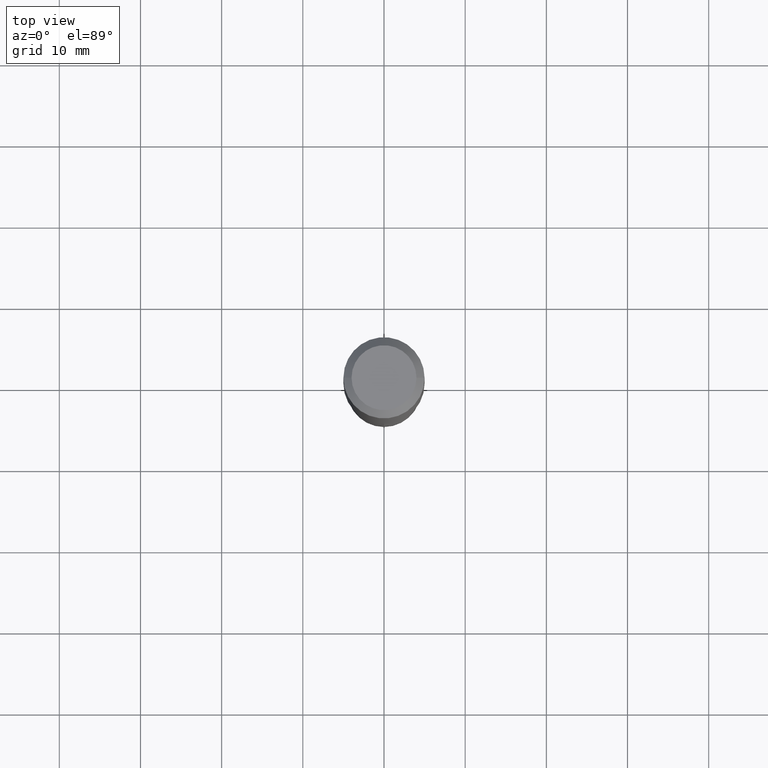
[diagram: clean part render]
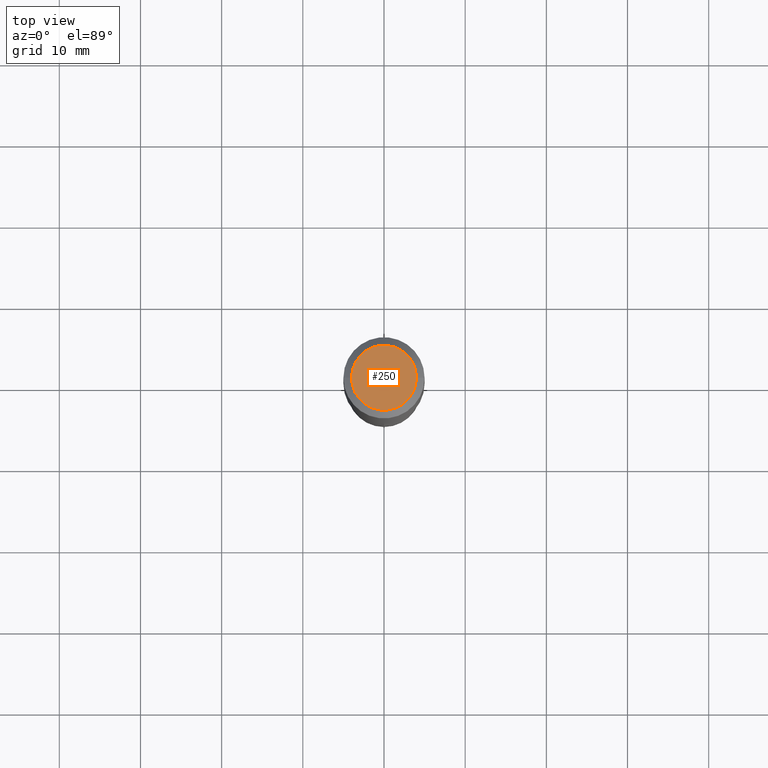
[diagram: same view with one face highlighted and labeled with its STEP entity id]
A machine part, top view. The second image highlights one B-rep face of the part: STEP entity #250.
In plain terms, the highlighted planar face has unit normal (0, -0, -1).
Its self-contained STEP definition (entity closure, byte-faithful):
#9 = ORIENTED_EDGE ( 'NONE', *, *, #270, .T. ) ;
#14 = DIRECTION ( 'NONE',  ( 1.000000000000000000, -6.982962677686265922E-15, 4.876223630392693006E-29 ) ) ;
#45 = DIRECTION ( 'NONE',  ( -2.445468806185136597E-29, 3.491481338843145583E-15, 1.000000000000000000 ) ) ;
#55 = VERTEX_POINT ( 'NONE', #156 ) ;
#83 = EDGE_CURVE ( 'NONE', #55, #466, #362, .T. ) ;
#120 = CARTESIAN_POINT ( 'NONE',  ( 0.1574800000000000089, -1.284169937930321189E-15, 3.855188123724205385E-18 ) ) ;
#129 = DIRECTION ( 'NONE',  ( -2.445468806185136597E-29, 3.491481338843145583E-15, 1.000000000000000000 ) ) ;
#134 = ORIENTED_EDGE ( 'NONE', *, *, #83, .T. ) ;
#156 = CARTESIAN_POINT ( 'NONE',  ( -0.1574800000000000089, 1.168406772637159618E-15, 3.855188123707939751E-18 ) ) ;
#169 = CARTESIAN_POINT ( 'NONE',  ( -9.427742298522567634E-47, 1.346031739168368355E-32, 3.855188123715870730E-18 ) ) ;
#194 = EDGE_LOOP ( 'NONE', ( #134, #9 ) ) ;
#231 = CARTESIAN_POINT ( 'NONE',  ( -9.427742298522567634E-47, 1.346031739168368355E-32, 3.855188123715870730E-18 ) ) ;
#250 = ADVANCED_FACE ( 'NONE', ( #392 ), #297, .F. ) ;
#270 = EDGE_CURVE ( 'NONE', #466, #55, #328, .T. ) ;
#284 = DIRECTION ( 'NONE',  ( -1.000000000000000000, 6.982962677686265922E-15, -4.876176775795935793E-29 ) ) ;
#297 = PLANE ( 'NONE',  #314 ) ;
#314 = AXIS2_PLACEMENT_3D ( 'NONE', #361, #447, #284 ) ;
#328 = CIRCLE ( 'NONE', #404, 0.1574800000000000089 ) ;
#342 = DIRECTION ( 'NONE',  ( 1.000000000000000000, -6.982962677686265922E-15, 4.876223630392693006E-29 ) ) ;
#361 = CARTESIAN_POINT ( 'NONE',  ( -4.713871149261283817E-47, 6.730158695841841775E-33, 1.927594061857935365E-18 ) ) ;
#362 = CIRCLE ( 'NONE', #430, 0.1574800000000000089 ) ;
#392 = FACE_OUTER_BOUND ( 'NONE', #194, .T. ) ;
#404 = AXIS2_PLACEMENT_3D ( 'NONE', #169, #129, #14 ) ;
#430 = AXIS2_PLACEMENT_3D ( 'NONE', #231, #45, #342 ) ;
#447 = DIRECTION ( 'NONE',  ( 2.438088387897960049E-29, -3.491481338843145188E-15, -1.000000000000000000 ) ) ;
#466 = VERTEX_POINT ( 'NONE', #120 ) ;